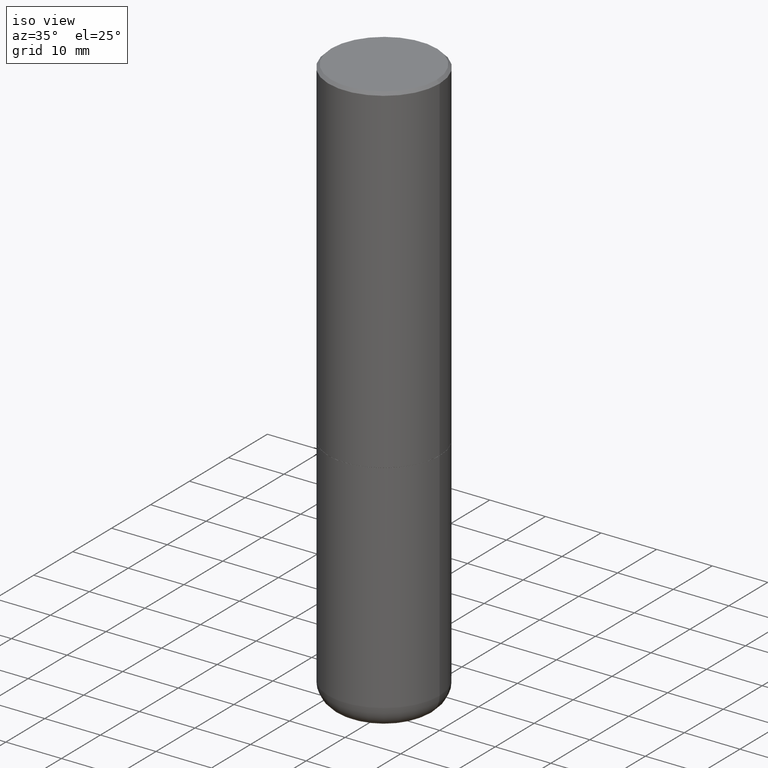
[diagram: clean part render]
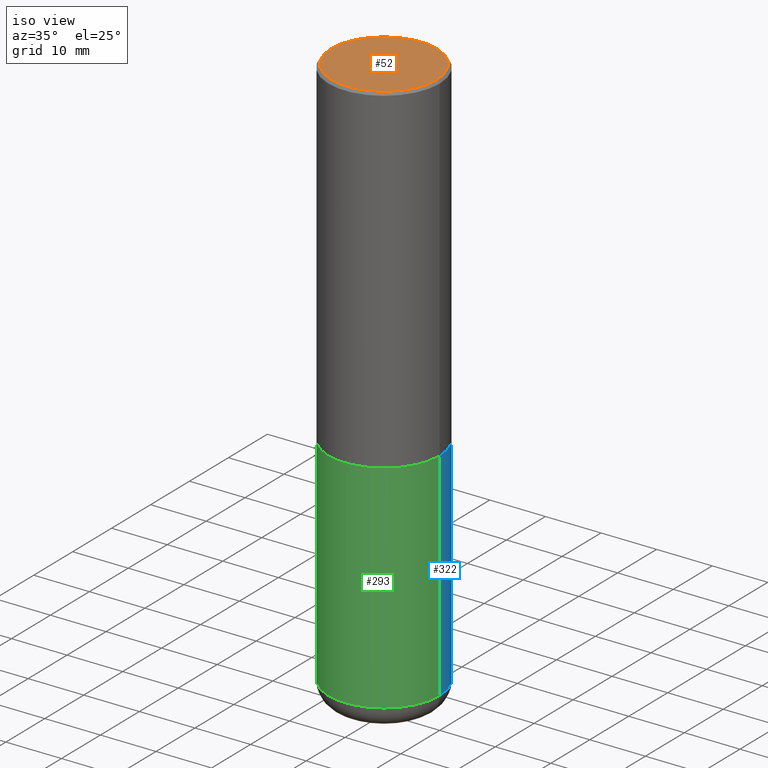
[diagram: same view with three faces highlighted in distinct colors, each labeled with its STEP entity id]
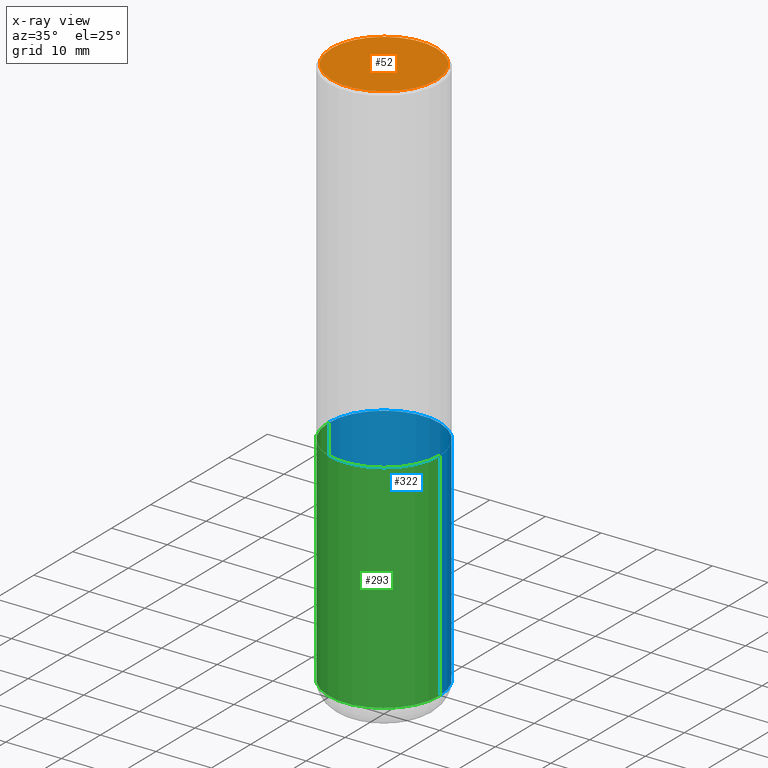
[diagram: x-ray of the same camera — body ghosted, the three highlighted faces saturated]
A machine part, iso view with three faces highlighted in distinct colors.
The next image is the same camera in x-ray (body ghosted, the three faces saturated) — at least one of them is partly hidden behind the body in this view.
Their STEP definitions:

[orange] entity #52 — the highlighted planar face has unit normal (0, -0, -1).
#15 = DIRECTION ( 'NONE',  ( -1.000000000000000000, 6.982962677686265922E-15, -4.876176775795935793E-29 ) ) ;
#17 = EDGE_CURVE ( 'NONE', #134, #290, #192, .T. ) ;
#30 = CARTESIAN_POINT ( 'NONE',  ( -5.428027354543142984E-45, 7.749784485978325769E-31, 2.219626494852213988E-16 ) ) ;
#40 = AXIS2_PLACEMENT_3D ( 'NONE', #299, #367, #15 ) ;
#46 = DIRECTION ( 'NONE',  ( 1.000000000000000000, -6.982962677686266711E-15, 4.877734241229879050E-29 ) ) ;
#52 = ADVANCED_FACE ( 'NONE', ( #329 ), #245, .F. ) ;
#59 = DIRECTION ( 'NONE',  ( -2.445468806185136597E-29, 3.491481338843145583E-15, 1.000000000000000000 ) ) ;
#75 = DIRECTION ( 'NONE',  ( -2.445468806185136597E-29, 3.491481338843145583E-15, 1.000000000000000000 ) ) ;
#134 = VERTEX_POINT ( 'NONE', #195 ) ;
#155 = EDGE_CURVE ( 'NONE', #290, #134, #168, .T. ) ;
#168 = CIRCLE ( 'NONE', #408, 0.3736999999999997546 ) ;
#192 = CIRCLE ( 'NONE', #401, 0.3736999999999997546 ) ;
#195 = CARTESIAN_POINT ( 'NONE',  ( -0.3736999999999997546, 2.644447966039789058E-15, 2.219626494852030085E-16 ) ) ;
#221 = DIRECTION ( 'NONE',  ( 1.000000000000000000, -6.982962677686266711E-15, 4.877734241229879050E-29 ) ) ;
#228 = CARTESIAN_POINT ( 'NONE',  ( -5.428027354543142984E-45, 7.749784485978325769E-31, 2.219626494852213988E-16 ) ) ;
#245 = PLANE ( 'NONE',  #40 ) ;
#255 = ORIENTED_EDGE ( 'NONE', *, *, #155, .T. ) ;
#277 = ORIENTED_EDGE ( 'NONE', *, *, #17, .T. ) ;
#280 = EDGE_LOOP ( 'NONE', ( #277, #255 ) ) ;
#290 = VERTEX_POINT ( 'NONE', #320 ) ;
#299 = CARTESIAN_POINT ( 'NONE',  ( 2.609533152651355831E-15, 0.3736999999999997546, -1.193785251583072147E-15 ) ) ;
#320 = CARTESIAN_POINT ( 'NONE',  ( 0.3736999999999997546, -2.667287895133366781E-15, 2.219626494852398384E-16 ) ) ;
#329 = FACE_OUTER_BOUND ( 'NONE', #280, .T. ) ;
#367 = DIRECTION ( 'NONE',  ( 2.438088387897960049E-29, -3.491481338843145188E-15, -1.000000000000000000 ) ) ;
#401 = AXIS2_PLACEMENT_3D ( 'NONE', #228, #75, #46 ) ;
#408 = AXIS2_PLACEMENT_3D ( 'NONE', #30, #59, #221 ) ;

[blue] entity #322 — the highlighted cylindrical surface (partial cylindrical patch) has radius 10 mm, axis along (-0, 0, 1).
#16 = CARTESIAN_POINT ( 'NONE',  ( 5.873037884934224349E-29, -8.385141583365698841E-15, -2.401600000000000179 ) ) ;
#38 = CYLINDRICAL_SURFACE ( 'NONE', #289, 0.3937000000000000499 ) ;
#39 = ORIENTED_EDGE ( 'NONE', *, *, #111, .T. ) ;
#51 = EDGE_CURVE ( 'NONE', #307, #252, #187, .T. ) ;
#64 = CIRCLE ( 'NONE', #208, 0.3937000000000000499 ) ;
#68 = CARTESIAN_POINT ( 'NONE',  ( 0.000000000000000000, 0.000000000000000000, 0.000000000000000000 ) ) ;
#91 = DIRECTION ( 'NONE',  ( 1.000000000000000000, -6.982962677686267499E-15, 0.000000000000000000 ) ) ;
#105 = AXIS2_PLACEMENT_3D ( 'NONE', #150, #247, #91 ) ;
#111 = EDGE_CURVE ( 'NONE', #307, #337, #358, .T. ) ;
#128 = LINE ( 'NONE', #409, #266 ) ;
#132 = DIRECTION ( 'NONE',  ( 1.000000000000000000, -6.982962677686265922E-15, 4.876176775795935793E-29 ) ) ;
#150 = CARTESIAN_POINT ( 'NONE',  ( 9.627810689950883669E-29, -1.374596203102546341E-14, -3.937000000000000277 ) ) ;
#161 = DIRECTION ( 'NONE',  ( -2.445468806185136877E-29, 3.491481338843145188E-15, 1.000000000000000000 ) ) ;
#165 = EDGE_CURVE ( 'NONE', #337, #413, #128, .T. ) ;
#187 = LINE ( 'NONE', #209, #341 ) ;
#200 = CARTESIAN_POINT ( 'NONE',  ( 0.3937000000000000499, -1.113433398957078206E-14, -2.401600000000000179 ) ) ;
#208 = AXIS2_PLACEMENT_3D ( 'NONE', #16, #362, #327 ) ;
#209 = CARTESIAN_POINT ( 'NONE',  ( 0.3937000000000000499, -2.749192406205083217E-15, 1.919750796630860172E-29 ) ) ;
#226 = EDGE_LOOP ( 'NONE', ( #39, #391, #351, #317 ) ) ;
#229 = CARTESIAN_POINT ( 'NONE',  ( 0.3937000000000001054, -1.649515443723054663E-14, -3.937000000000000277 ) ) ;
#247 = DIRECTION ( 'NONE',  ( -2.445468806185136597E-29, 3.491481338843145583E-15, 1.000000000000000000 ) ) ;
#252 = VERTEX_POINT ( 'NONE', #200 ) ;
#266 = VECTOR ( 'NONE', #161, 39.37007874015748143 ) ;
#268 = DIRECTION ( 'NONE',  ( -2.445468806185136877E-29, 3.491481338843145188E-15, 1.000000000000000000 ) ) ;
#289 = AXIS2_PLACEMENT_3D ( 'NONE', #68, #415, #132 ) ;
#307 = VERTEX_POINT ( 'NONE', #229 ) ;
#317 = ORIENTED_EDGE ( 'NONE', *, *, #51, .F. ) ;
#322 = ADVANCED_FACE ( 'NONE', ( #346 ), #38, .T. ) ;
#327 = DIRECTION ( 'NONE',  ( 1.000000000000000000, -6.982962677686265133E-15, 0.000000000000000000 ) ) ;
#336 = CARTESIAN_POINT ( 'NONE',  ( -0.3937000000000000499, -8.268145056508066341E-15, -2.401600000000000179 ) ) ;
#337 = VERTEX_POINT ( 'NONE', #349 ) ;
#341 = VECTOR ( 'NONE', #268, 39.37007874015748143 ) ;
#346 = FACE_OUTER_BOUND ( 'NONE', #226, .T. ) ;
#349 = CARTESIAN_POINT ( 'NONE',  ( -0.3937000000000001054, -1.094855528033794942E-14, -3.937000000000000277 ) ) ;
#351 = ORIENTED_EDGE ( 'NONE', *, *, #355, .F. ) ;
#355 = EDGE_CURVE ( 'NONE', #252, #413, #64, .T. ) ;
#358 = CIRCLE ( 'NONE', #105, 0.3937000000000000499 ) ;
#362 = DIRECTION ( 'NONE',  ( -2.445468806185136597E-29, 3.491481338843145583E-15, 1.000000000000000000 ) ) ;
#391 = ORIENTED_EDGE ( 'NONE', *, *, #165, .T. ) ;
#409 = CARTESIAN_POINT ( 'NONE',  ( -0.3937000000000000499, 2.797406750687514786E-15, -1.936584745033356735E-29 ) ) ;
#413 = VERTEX_POINT ( 'NONE', #336 ) ;
#415 = DIRECTION ( 'NONE',  ( -2.445468806185136597E-29, 3.491481338843145583E-15, 1.000000000000000000 ) ) ;

[green] entity #293 — the highlighted cylindrical surface (partial cylindrical patch) has radius 10 mm, axis along (-0, 0, 1).
#51 = EDGE_CURVE ( 'NONE', #307, #252, #187, .T. ) ;
#57 = AXIS2_PLACEMENT_3D ( 'NONE', #77, #288, #258 ) ;
#60 = CARTESIAN_POINT ( 'NONE',  ( 5.873037884934224349E-29, -8.385141583365698841E-15, -2.401600000000000179 ) ) ;
#77 = CARTESIAN_POINT ( 'NONE',  ( 0.000000000000000000, 0.000000000000000000, 0.000000000000000000 ) ) ;
#108 = DIRECTION ( 'NONE',  ( 1.000000000000000000, -6.982962677686267499E-15, 0.000000000000000000 ) ) ;
#125 = DIRECTION ( 'NONE',  ( 1.000000000000000000, -6.982962677686265133E-15, 0.000000000000000000 ) ) ;
#128 = LINE ( 'NONE', #409, #266 ) ;
#135 = CYLINDRICAL_SURFACE ( 'NONE', #57, 0.3937000000000000499 ) ;
#161 = DIRECTION ( 'NONE',  ( -2.445468806185136877E-29, 3.491481338843145188E-15, 1.000000000000000000 ) ) ;
#165 = EDGE_CURVE ( 'NONE', #337, #413, #128, .T. ) ;
#175 = DIRECTION ( 'NONE',  ( -2.445468806185136597E-29, 3.491481338843145583E-15, 1.000000000000000000 ) ) ;
#177 = EDGE_CURVE ( 'NONE', #413, #252, #333, .T. ) ;
#180 = ORIENTED_EDGE ( 'NONE', *, *, #51, .T. ) ;
#181 = AXIS2_PLACEMENT_3D ( 'NONE', #311, #175, #108 ) ;
#187 = LINE ( 'NONE', #209, #341 ) ;
#200 = CARTESIAN_POINT ( 'NONE',  ( 0.3937000000000000499, -1.113433398957078206E-14, -2.401600000000000179 ) ) ;
#205 = AXIS2_PLACEMENT_3D ( 'NONE', #60, #378, #125 ) ;
#209 = CARTESIAN_POINT ( 'NONE',  ( 0.3937000000000000499, -2.749192406205083217E-15, 1.919750796630860172E-29 ) ) ;
#229 = CARTESIAN_POINT ( 'NONE',  ( 0.3937000000000001054, -1.649515443723054663E-14, -3.937000000000000277 ) ) ;
#246 = EDGE_CURVE ( 'NONE', #337, #307, #342, .T. ) ;
#252 = VERTEX_POINT ( 'NONE', #200 ) ;
#258 = DIRECTION ( 'NONE',  ( 1.000000000000000000, -6.982962677686265922E-15, 4.876176775795935793E-29 ) ) ;
#266 = VECTOR ( 'NONE', #161, 39.37007874015748143 ) ;
#268 = DIRECTION ( 'NONE',  ( -2.445468806185136877E-29, 3.491481338843145188E-15, 1.000000000000000000 ) ) ;
#279 = FACE_OUTER_BOUND ( 'NONE', #410, .T. ) ;
#288 = DIRECTION ( 'NONE',  ( -2.445468806185136597E-29, 3.491481338843145583E-15, 1.000000000000000000 ) ) ;
#293 = ADVANCED_FACE ( 'NONE', ( #279 ), #135, .T. ) ;
#307 = VERTEX_POINT ( 'NONE', #229 ) ;
#311 = CARTESIAN_POINT ( 'NONE',  ( 9.627810689950883669E-29, -1.374596203102546341E-14, -3.937000000000000277 ) ) ;
#321 = ORIENTED_EDGE ( 'NONE', *, *, #177, .F. ) ;
#333 = CIRCLE ( 'NONE', #205, 0.3937000000000000499 ) ;
#336 = CARTESIAN_POINT ( 'NONE',  ( -0.3937000000000000499, -8.268145056508066341E-15, -2.401600000000000179 ) ) ;
#337 = VERTEX_POINT ( 'NONE', #349 ) ;
#341 = VECTOR ( 'NONE', #268, 39.37007874015748143 ) ;
#342 = CIRCLE ( 'NONE', #181, 0.3937000000000000499 ) ;
#349 = CARTESIAN_POINT ( 'NONE',  ( -0.3937000000000001054, -1.094855528033794942E-14, -3.937000000000000277 ) ) ;
#378 = DIRECTION ( 'NONE',  ( -2.445468806185136597E-29, 3.491481338843145583E-15, 1.000000000000000000 ) ) ;
#379 = ORIENTED_EDGE ( 'NONE', *, *, #165, .F. ) ;
#409 = CARTESIAN_POINT ( 'NONE',  ( -0.3937000000000000499, 2.797406750687514786E-15, -1.936584745033356735E-29 ) ) ;
#410 = EDGE_LOOP ( 'NONE', ( #379, #412, #180, #321 ) ) ;
#412 = ORIENTED_EDGE ( 'NONE', *, *, #246, .T. ) ;
#413 = VERTEX_POINT ( 'NONE', #336 ) ;